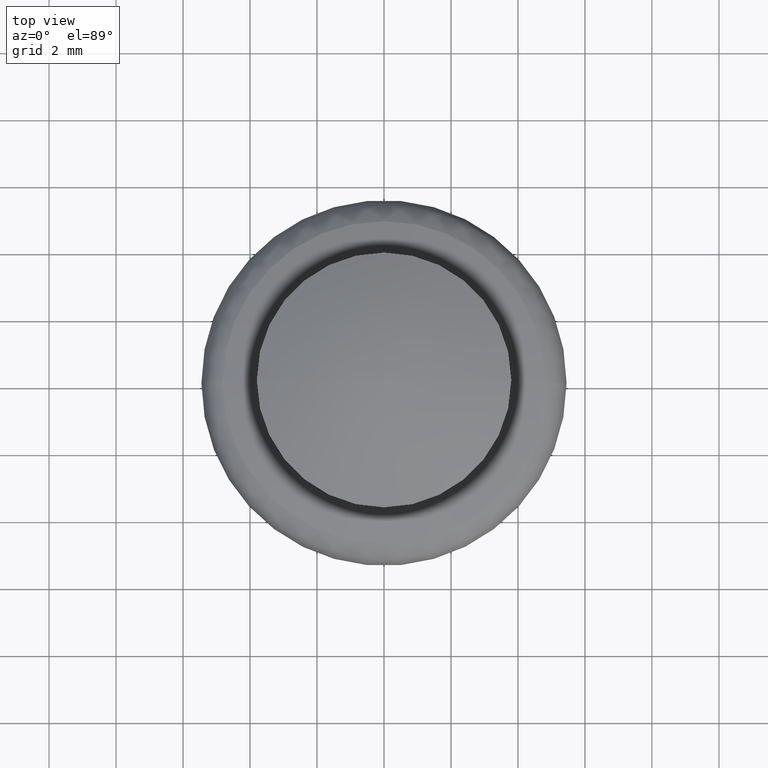
[diagram: clean part render]
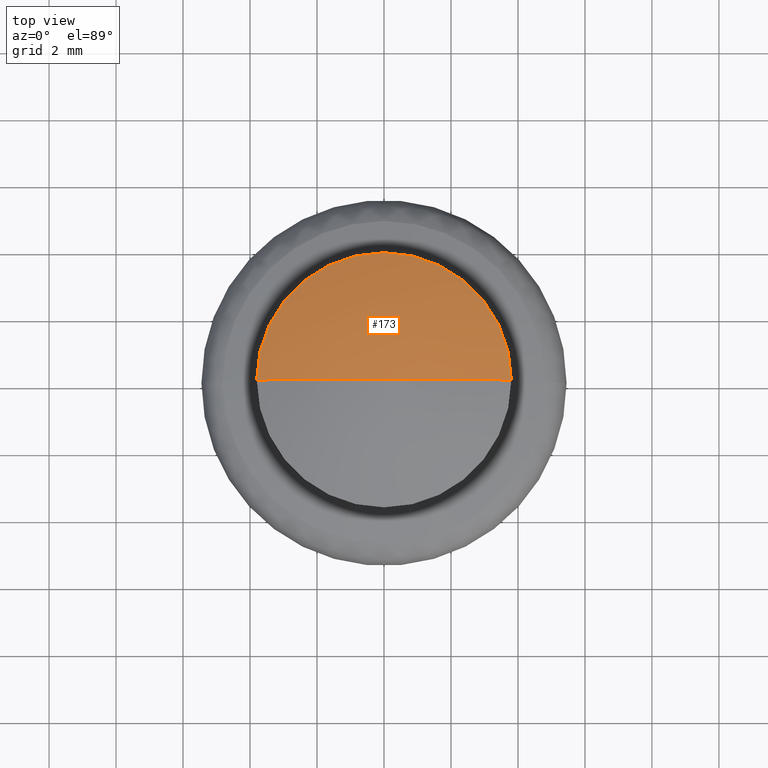
[diagram: same view with one face highlighted and labeled with its STEP entity id]
A machine part, top view. The second image highlights one B-rep face of the part: STEP entity #173.
In plain terms, the highlighted spherical surface has radius 9.425 mm.
Its self-contained STEP definition (entity closure, byte-faithful):
#173=ADVANCED_FACE('',(#808),#807,.T.);
#807=SPHERICAL_SURFACE('',#1427,9.42500000000E+00);
#808=FACE_OUTER_BOUND('',#1428,.T.);
#1424=CARTESIAN_POINT('',(0.00000000000E+00,0.00000000000E+00,-6.62500000000E+00));
#1425=DIRECTION('',(0.00000000000E+00,0.00000000000E+00,-1.00000000000E+00));
#1426=DIRECTION('',(-1.00000000000E+00,1.22460635382E-16,-0.00000000000E+00));
#1427=AXIS2_PLACEMENT_3D('',#1424,#1425,#1426);
#1428=EDGE_LOOP('',(#1868,#1869,#1870));
#1868=ORIENTED_EDGE('',*,*,#2106,.F.);
#1869=ORIENTED_EDGE('',*,*,#2107,.F.);
#1870=ORIENTED_EDGE('',*,*,#2108,.T.);
#2106=EDGE_CURVE('',#3254,#3255,#3256,.T.);
#2107=EDGE_CURVE('',#3262,#3254,#3263,.T.);
#2108=EDGE_CURVE('',#3262,#3255,#3269,.T.);
#3254=VERTEX_POINT('',#4163);
#3255=VERTEX_POINT('',#4164);
#3256=CIRCLE('',#4168,3.80000000000E+00);
#3262=VERTEX_POINT('',#4169);
#3263=(BOUNDED_CURVE() B_SPLINE_CURVE(2,(#4170,#4171,#4172),.UNSPECIFIED.,.F.,.F.) B_SPLINE_CURVE_WITH_KNOTS((3,3),(0.00000000000E+00,1.00000000000E+00),.UNSPECIFIED.) CURVE() GEOMETRIC_REPRESENTATION_ITEM() RATIONAL_B_SPLINE_CURVE((1.00000000000E+00,9.78549784987E-01,1.00000000000E+00)) REPRESENTATION_ITEM('') );
#3269=(BOUNDED_CURVE() B_SPLINE_CURVE(2,(#4173,#4174,#4175),.UNSPECIFIED.,.F.,.F.) B_SPLINE_CURVE_WITH_KNOTS((3,3),(0.00000000000E+00,1.00000000000E+00),.UNSPECIFIED.) CURVE() GEOMETRIC_REPRESENTATION_ITEM() RATIONAL_B_SPLINE_CURVE((7.50000000000E-01,7.33912338740E-01,7.50000000000E-01)) REPRESENTATION_ITEM('') );
#4163=CARTESIAN_POINT('',(-3.80000000000E+00,0.00000000000E+00,2.00000000000E+00));
#4164=CARTESIAN_POINT('',(3.80000000000E+00,4.44089209850E-16,2.00000000000E+00));
#4165=CARTESIAN_POINT('',(0.00000000000E+00,0.00000000000E+00,2.00000000000E+00));
#4166=DIRECTION('',(-0.00000000000E+00,0.00000000000E+00,-1.00000000000E+00));
#4167=DIRECTION('',(-1.00000000000E+00,-1.22460635382E-16,0.00000000000E+00));
#4168=AXIS2_PLACEMENT_3D('',#4165,#4166,#4167);
#4169=CARTESIAN_POINT('',(-5.77095744239E-16,7.06715115159E-32,2.80000000000E+00));
#4170=CARTESIAN_POINT('',(-5.77095744239E-16,7.06715115159E-32,2.80000000000E+00));
#4171=CARTESIAN_POINT('',(-1.98421052632E+00,2.42987681785E-16,2.80000000000E+00));
#4172=CARTESIAN_POINT('',(-3.80000000000E+00,4.65350414453E-16,2.00000000000E+00));
#4173=CARTESIAN_POINT('',(5.77095744239E-16,-6.57384087684E-32,2.80000000000E+00));
#4174=CARTESIAN_POINT('',(1.98421052632E+00,-3.78186523792E-16,2.80000000000E+00));
#4175=CARTESIAN_POINT('',(3.80000000000E+00,-5.92118946467E-16,2.00000000000E+00));